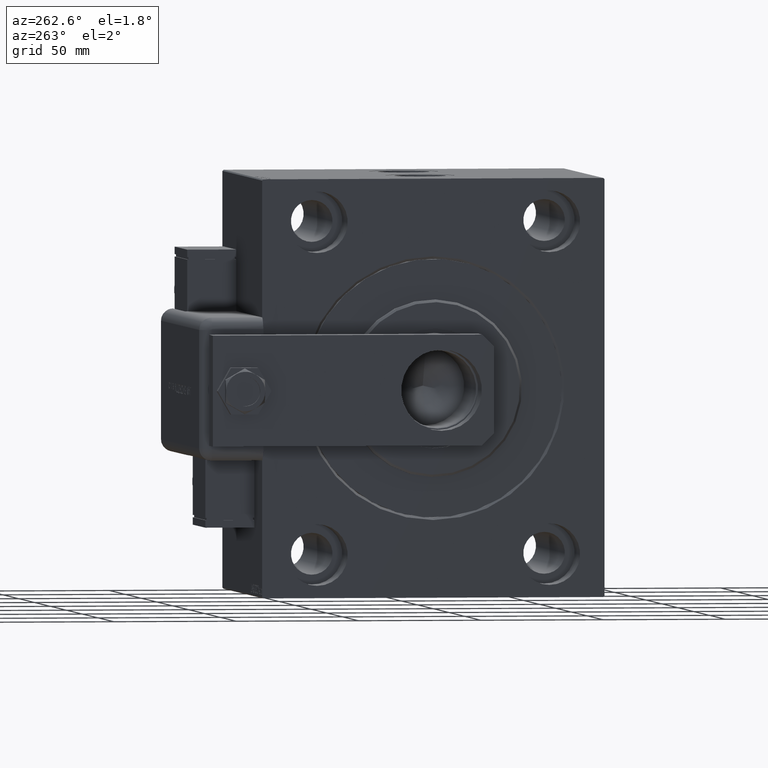
[diagram: clean part render]
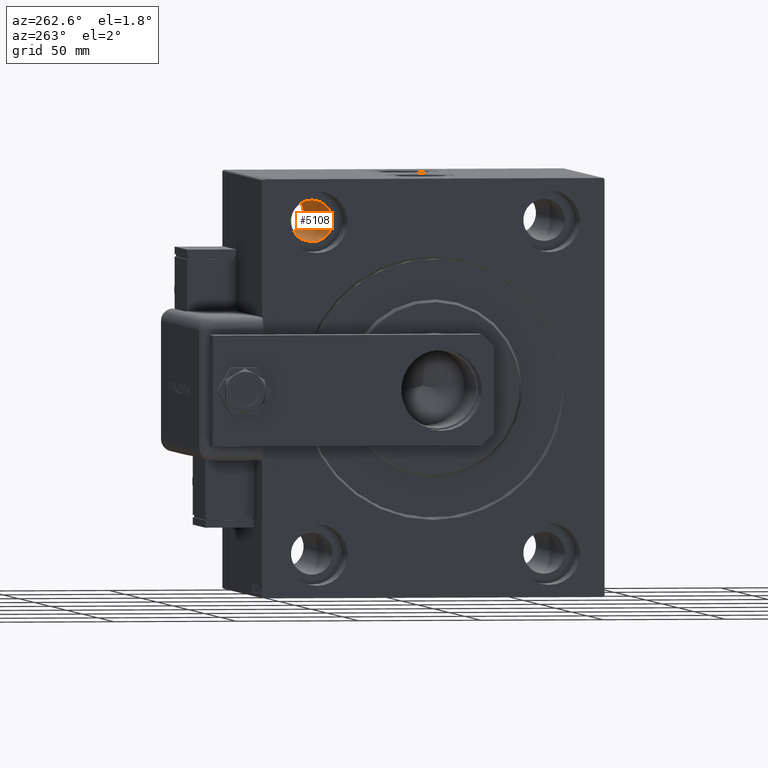
[diagram: same view with one face highlighted and labeled with its STEP entity id]
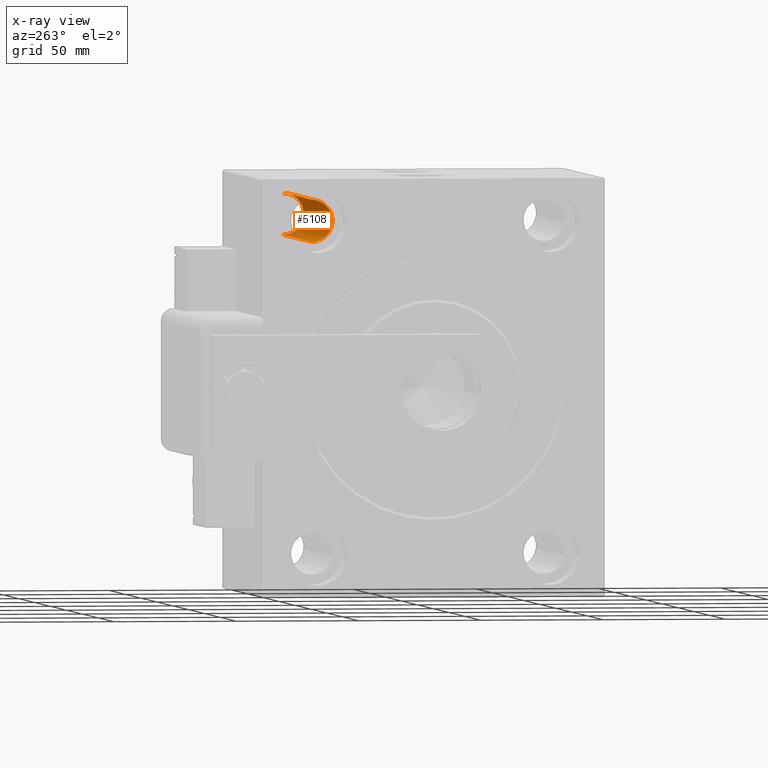
[diagram: x-ray of the same camera — body ghosted, the highlighted face saturated]
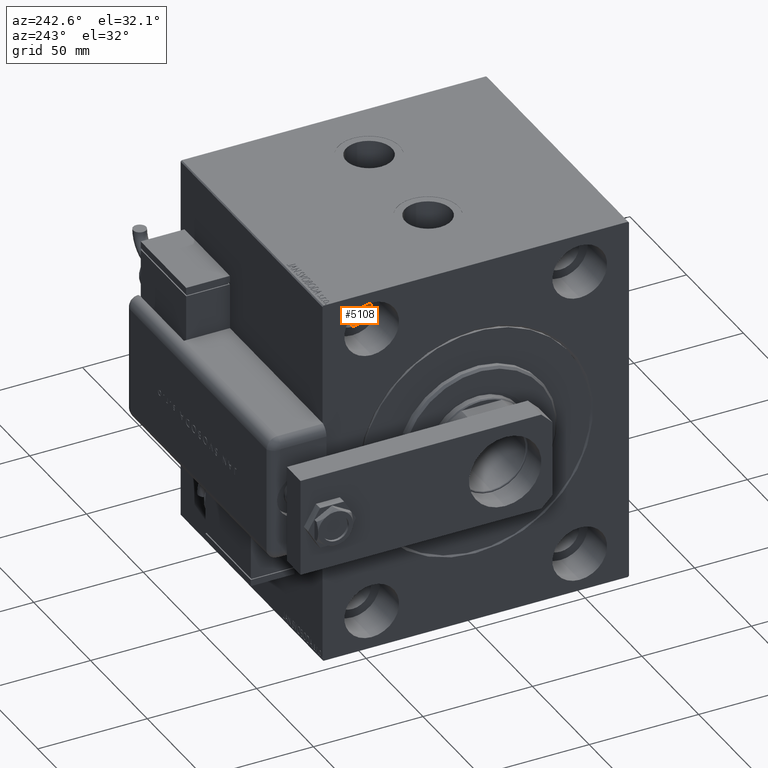
[diagram: same view with one face highlighted and labeled with its STEP entity id]
A machine part, auxiliary view. The second image highlights one B-rep face of the part: STEP entity #5108.
The next image is the same camera in x-ray: the body ghosted, the highlighted face saturated — about 9% of this face is hidden behind the body in this view.
A second angle (auxiliary view) of the same face is appended — the face is thin or edge-on in the first view.
In plain terms, the highlighted cylindrical surface (edge-blend (fillet) strip) has radius 8.5 mm, axis along (-1, -0, -0).
Its self-contained STEP definition (entity closure, byte-faithful):
#756 = DIRECTION ( 'NONE',  ( -1.000000000000000000, -0.000000000000000000, -0.000000000000000000 ) ) ;
#838 = ORIENTED_EDGE ( 'NONE', *, *, #38595, .F. ) ;
#4037 = ORIENTED_EDGE ( 'NONE', *, *, #53430, .T. ) ;
#5066 = CARTESIAN_POINT ( 'NONE',  ( 125.0000000000000000, 47.50000000000000711, 76.00000000000001421 ) ) ;
#5108 = ADVANCED_FACE ( 'NONE', ( #29911 ), #20861, .F. ) ;
#11040 = DIRECTION ( 'NONE',  ( 0.000000000000000000, 0.000000000000000000, -1.000000000000000000 ) ) ;
#11144 = VERTEX_POINT ( 'NONE', #39488 ) ;
#12368 = CARTESIAN_POINT ( 'NONE',  ( 108.0000000000000000, 47.50000000000000711, 76.00000000000001421 ) ) ;
#13895 = AXIS2_PLACEMENT_3D ( 'NONE', #43823, #48077, #30197 ) ;
#14383 = LINE ( 'NONE', #46421, #53926 ) ;
#15289 = CARTESIAN_POINT ( 'NONE',  ( 108.0000000000000000, 47.50000000000000711, 67.50000000000000000 ) ) ;
#16362 = CIRCLE ( 'NONE', #30801, 8.500000000000007105 ) ;
#16651 = EDGE_CURVE ( 'NONE', #52951, #47533, #51021, .T. ) ;
#20861 = CYLINDRICAL_SURFACE ( 'NONE', #13895, 8.500000000000007105 ) ;
#23356 = EDGE_LOOP ( 'NONE', ( #838, #40392, #4037, #41516 ) ) ;
#23603 = CARTESIAN_POINT ( 'NONE',  ( 108.0000000000000000, 47.50000000000000711, 59.00000000000000000 ) ) ;
#29911 = FACE_OUTER_BOUND ( 'NONE', #23356, .T. ) ;
#30016 = EDGE_CURVE ( 'NONE', #39166, #11144, #14383, .T. ) ;
#30197 = DIRECTION ( 'NONE',  ( 0.000000000000000000, 0.000000000000000000, 1.000000000000000000 ) ) ;
#30801 = AXIS2_PLACEMENT_3D ( 'NONE', #15289, #42778, #11040 ) ;
#31188 = AXIS2_PLACEMENT_3D ( 'NONE', #45123, #50548, #54503 ) ;
#38595 = EDGE_CURVE ( 'NONE', #39166, #52951, #16362, .T. ) ;
#39166 = VERTEX_POINT ( 'NONE', #23603 ) ;
#39488 = CARTESIAN_POINT ( 'NONE',  ( 17.00000000000000000, 47.50000000000000711, 59.00000000000000000 ) ) ;
#40392 = ORIENTED_EDGE ( 'NONE', *, *, #30016, .T. ) ;
#40852 = CIRCLE ( 'NONE', #31188, 8.500000000000007105 ) ;
#41045 = DIRECTION ( 'NONE',  ( -1.000000000000000000, -0.000000000000000000, -0.000000000000000000 ) ) ;
#41516 = ORIENTED_EDGE ( 'NONE', *, *, #16651, .F. ) ;
#42778 = DIRECTION ( 'NONE',  ( -1.000000000000000000, -0.000000000000000000, -0.000000000000000000 ) ) ;
#43823 = CARTESIAN_POINT ( 'NONE',  ( 125.0000000000000000, 47.50000000000000711, 67.50000000000000000 ) ) ;
#45123 = CARTESIAN_POINT ( 'NONE',  ( 17.00000000000000000, 47.50000000000000711, 67.50000000000000000 ) ) ;
#46421 = CARTESIAN_POINT ( 'NONE',  ( 125.0000000000000000, 47.50000000000000711, 59.00000000000000000 ) ) ;
#47533 = VERTEX_POINT ( 'NONE', #58352 ) ;
#48077 = DIRECTION ( 'NONE',  ( -1.000000000000000000, -0.000000000000000000, -0.000000000000000000 ) ) ;
#48680 = VECTOR ( 'NONE', #41045, 1000.000000000000000 ) ;
#50548 = DIRECTION ( 'NONE',  ( -1.000000000000000000, 0.000000000000000000, 0.000000000000000000 ) ) ;
#51021 = LINE ( 'NONE', #5066, #48680 ) ;
#52951 = VERTEX_POINT ( 'NONE', #12368 ) ;
#53430 = EDGE_CURVE ( 'NONE', #11144, #47533, #40852, .T. ) ;
#53926 = VECTOR ( 'NONE', #756, 1000.000000000000000 ) ;
#54503 = DIRECTION ( 'NONE',  ( 0.000000000000000000, 0.000000000000000000, 1.000000000000000000 ) ) ;
#58352 = CARTESIAN_POINT ( 'NONE',  ( 17.00000000000000000, 47.50000000000000711, 76.00000000000001421 ) ) ;